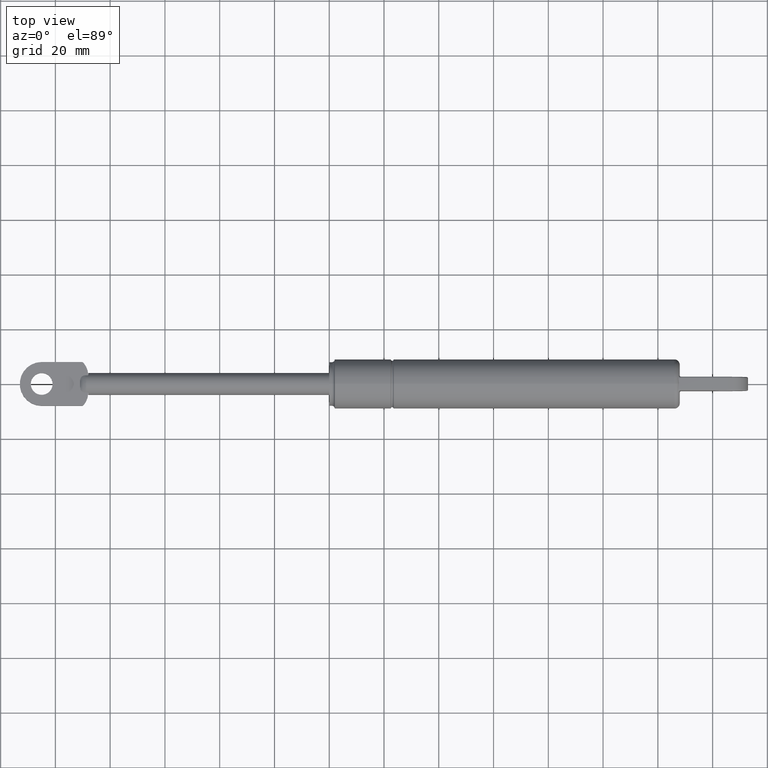
[diagram: clean part render]
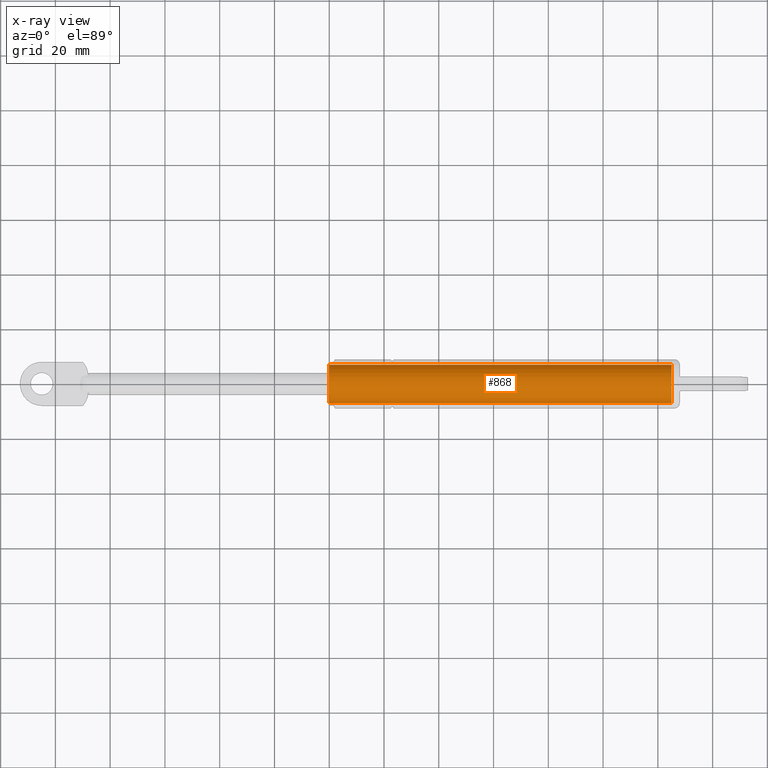
[diagram: x-ray — body ghosted, one internal face saturated and labeled with its STEP entity id]
A machine part, top view, then the same camera in x-ray: the body is ghosted and one INTERNAL B-rep face — a face not visible from any outside direction — is saturated and labeled: STEP entity #868.
In plain terms, the highlighted cylindrical surface (bore or boss wall) has radius 7 mm, axis along (-1, 0, 0).
Its self-contained STEP definition (entity closure, byte-faithful):
#178=CYLINDRICAL_SURFACE('',#951,7.);
#201=FACE_BOUND('',#317,.T.);
#247=FACE_OUTER_BOUND('',#316,.T.);
#316=EDGE_LOOP('',(#729));
#317=EDGE_LOOP('',(#730));
#387=CIRCLE('',#952,7.);
#388=CIRCLE('',#953,7.);
#454=VERTEX_POINT('',#1671);
#455=VERTEX_POINT('',#1673);
#555=EDGE_CURVE('',#454,#454,#387,.T.);
#556=EDGE_CURVE('',#455,#455,#388,.T.);
#729=ORIENTED_EDGE('',*,*,#555,.F.);
#730=ORIENTED_EDGE('',*,*,#556,.F.);
#868=ADVANCED_FACE('',(#247,#201),#178,.F.);
#951=AXIS2_PLACEMENT_3D('',#1670,#1126,#1127);
#952=AXIS2_PLACEMENT_3D('',#1672,#1128,#1129);
#953=AXIS2_PLACEMENT_3D('',#1674,#1130,#1131);
#1126=DIRECTION('center_axis',(-1.,0.,0.));
#1127=DIRECTION('ref_axis',(0.,-1.,0.));
#1128=DIRECTION('center_axis',(1.,0.,0.));
#1129=DIRECTION('ref_axis',(0.,-1.,0.));
#1130=DIRECTION('center_axis',(-1.,0.,0.));
#1131=DIRECTION('ref_axis',(0.,-1.,0.));
#1670=CARTESIAN_POINT('Origin',(62.5,0.,0.));
#1671=CARTESIAN_POINT('',(0.,-7.,0.));
#1672=CARTESIAN_POINT('Origin',(0.,0.,0.));
#1673=CARTESIAN_POINT('',(125.,-7.,0.));
#1674=CARTESIAN_POINT('Origin',(125.,0.,0.));